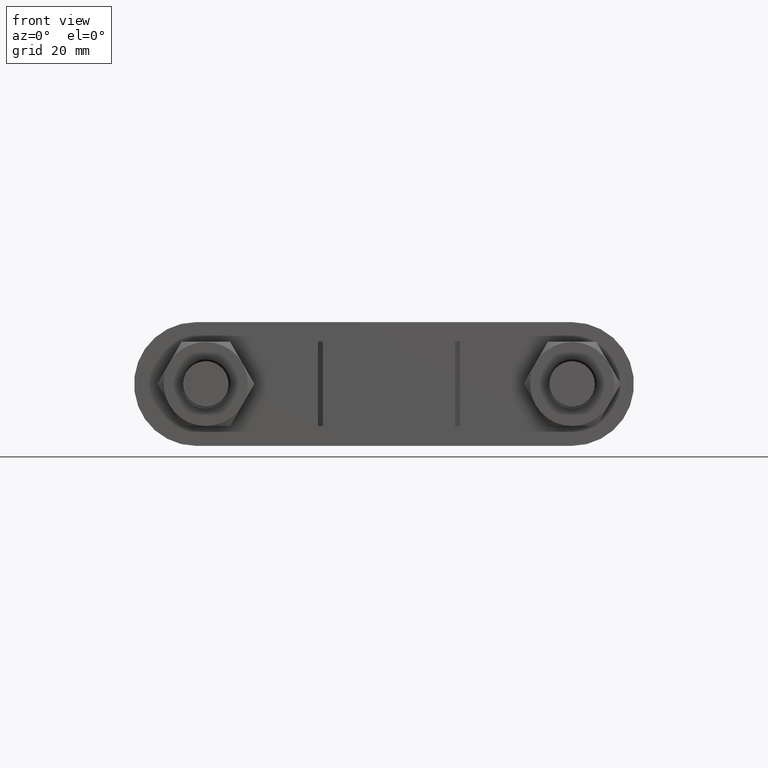
[diagram: clean part render]
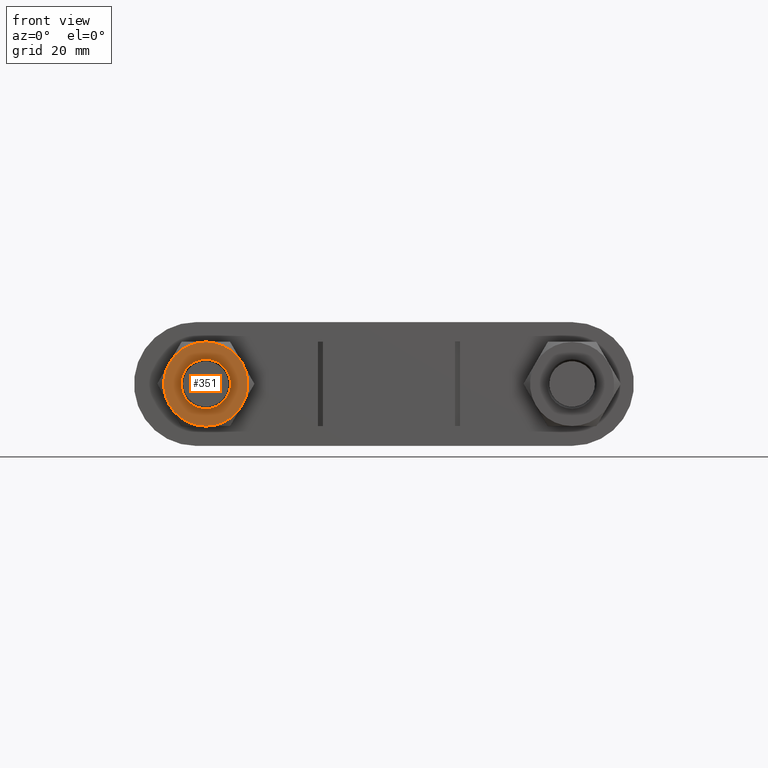
[diagram: same view with one face highlighted and labeled with its STEP entity id]
A machine part, front view. The second image highlights one B-rep face of the part: STEP entity #351.
In plain terms, the highlighted planar face has unit normal (0, 1, -0).
Its self-contained STEP definition (entity closure, byte-faithful):
#351 = ADVANCED_FACE( '', ( #570, #571 ), #572, .F. );
#570 = FACE_OUTER_BOUND( '', #1648, .T. );
#571 = FACE_BOUND( '', #1649, .T. );
#572 = PLANE( '', #1650 );
#1648 = EDGE_LOOP( '', ( #2317, #2318, #2319, #2320, #2321, #2322 ) );
#1649 = EDGE_LOOP( '', ( #2323 ) );
#1650 = AXIS2_PLACEMENT_3D( '', #2324, #2325, #2326 );
#2317 = ORIENTED_EDGE( '', *, *, #2693, .F. );
#2318 = ORIENTED_EDGE( '', *, *, #2659, .F. );
#2319 = ORIENTED_EDGE( '', *, *, #2679, .F. );
#2320 = ORIENTED_EDGE( '', *, *, #2695, .F. );
#2321 = ORIENTED_EDGE( '', *, *, #2649, .F. );
#2322 = ORIENTED_EDGE( '', *, *, #2691, .F. );
#2323 = ORIENTED_EDGE( '', *, *, #2697, .T. );
#2324 = CARTESIAN_POINT( '', ( -37.0000000000000, 17.0000000000003, -1.07765359136371E-015 ) );
#2325 = DIRECTION( '', ( 9.18247024260622E-049, 1.00000000000000, -6.12303176911188E-017 ) );
#2326 = DIRECTION( '', ( 1.00000000000000, 0.000000000000000, 1.49966072182214E-032 ) );
#2649 = EDGE_CURVE( '', #2970, #2972, #2973, .T. );
#2659 = EDGE_CURVE( '', #2990, #2983, #2991, .T. );
#2679 = EDGE_CURVE( '', #3026, #2990, #3027, .T. );
#2691 = EDGE_CURVE( '', #3016, #2970, #3043, .T. );
#2693 = EDGE_CURVE( '', #2983, #3016, #3045, .T. );
#2695 = EDGE_CURVE( '', #2972, #3026, #3047, .T. );
#2697 = EDGE_CURVE( '', #3049, #3049, #3050, .T. );
#2970 = VERTEX_POINT( '', #3675 );
#2972 = VERTEX_POINT( '', #3682 );
#2973 = CIRCLE( '', #3683, 8.49999999999946 );
#2983 = VERTEX_POINT( '', #3700 );
#2990 = VERTEX_POINT( '', #3719 );
#2991 = CIRCLE( '', #3720, 8.49999999999946 );
#3016 = VERTEX_POINT( '', #3768 );
#3026 = VERTEX_POINT( '', #3791 );
#3027 = CIRCLE( '', #3792, 8.49999999999946 );
#3043 = CIRCLE( '', #3821, 8.49999999999946 );
#3045 = CIRCLE( '', #3823, 8.49999999999946 );
#3047 = CIRCLE( '', #3825, 8.49999999999946 );
#3049 = VERTEX_POINT( '', #3832 );
#3050 = CIRCLE( '', #3833, 4.99999999999968 );
#3675 = CARTESIAN_POINT( '', ( -36.9999999999999, 17.0000000000003, 8.49999999999946 ) );
#3682 = CARTESIAN_POINT( '', ( -29.6387840678328, 17.0000000000003, 4.24999999999974 ) );
#3683 = AXIS2_PLACEMENT_3D( '', #4175, #4176, #4177 );
#3700 = CARTESIAN_POINT( '', ( -44.3612159321672, 17.0000000000003, -4.24999999999978 ) );
#3719 = CARTESIAN_POINT( '', ( -37.0000000000001, 17.0000000000003, -8.49999999999947 ) );
#3720 = AXIS2_PLACEMENT_3D( '', #4188, #4189, #4190 );
#3768 = CARTESIAN_POINT( '', ( -44.3612159321670, 17.0000000000002, 4.24999999999980 ) );
#3791 = CARTESIAN_POINT( '', ( -29.6387840678330, 17.0000000000002, -4.24999999999981 ) );
#3792 = AXIS2_PLACEMENT_3D( '', #4211, #4212, #4213 );
#3821 = AXIS2_PLACEMENT_3D( '', #4235, #4236, #4237 );
#3823 = AXIS2_PLACEMENT_3D( '', #4241, #4242, #4243 );
#3825 = AXIS2_PLACEMENT_3D( '', #4247, #4248, #4249 );
#3832 = CARTESIAN_POINT( '', ( -37.0000000000000, 17.0000000000003, 4.99999999999968 ) );
#3833 = AXIS2_PLACEMENT_3D( '', #4250, #4251, #4252 );
#4175 = CARTESIAN_POINT( '', ( -37.0000000000000, 17.0000000000003, -1.07765359136371E-015 ) );
#4176 = DIRECTION( '', ( 9.18247024260622E-049, 1.00000000000000, -6.12303176911188E-017 ) );
#4177 = DIRECTION( '', ( 0.000000000000000, 6.12303176911188E-017, 1.00000000000000 ) );
#4188 = CARTESIAN_POINT( '', ( -37.0000000000000, 17.0000000000003, -1.07765359136371E-015 ) );
#4189 = DIRECTION( '', ( 9.18247024260622E-049, 1.00000000000000, -6.12303176911188E-017 ) );
#4190 = DIRECTION( '', ( 0.000000000000000, 6.12303176911188E-017, 1.00000000000000 ) );
#4211 = CARTESIAN_POINT( '', ( -37.0000000000000, 17.0000000000003, -1.07765359136371E-015 ) );
#4212 = DIRECTION( '', ( 9.18247024260622E-049, 1.00000000000000, -6.12303176911188E-017 ) );
#4213 = DIRECTION( '', ( 0.000000000000000, 6.12303176911188E-017, 1.00000000000000 ) );
#4235 = CARTESIAN_POINT( '', ( -37.0000000000000, 17.0000000000003, -1.07765359136371E-015 ) );
#4236 = DIRECTION( '', ( 9.18247024260622E-049, 1.00000000000000, -6.12303176911188E-017 ) );
#4237 = DIRECTION( '', ( 0.000000000000000, 6.12303176911188E-017, 1.00000000000000 ) );
#4241 = CARTESIAN_POINT( '', ( -37.0000000000000, 17.0000000000003, -1.07765359136371E-015 ) );
#4242 = DIRECTION( '', ( 9.18247024260622E-049, 1.00000000000000, -6.12303176911188E-017 ) );
#4243 = DIRECTION( '', ( 0.000000000000000, 6.12303176911188E-017, 1.00000000000000 ) );
#4247 = CARTESIAN_POINT( '', ( -37.0000000000000, 17.0000000000003, -1.07765359136371E-015 ) );
#4248 = DIRECTION( '', ( 9.18247024260622E-049, 1.00000000000000, -6.12303176911188E-017 ) );
#4249 = DIRECTION( '', ( 0.000000000000000, 6.12303176911188E-017, 1.00000000000000 ) );
#4250 = CARTESIAN_POINT( '', ( -37.0000000000000, 17.0000000000003, -1.07765359136371E-015 ) );
#4251 = DIRECTION( '', ( 9.18247024260622E-049, 1.00000000000000, -6.12303176911188E-017 ) );
#4252 = DIRECTION( '', ( 0.000000000000000, 6.12303176911188E-017, 1.00000000000000 ) );